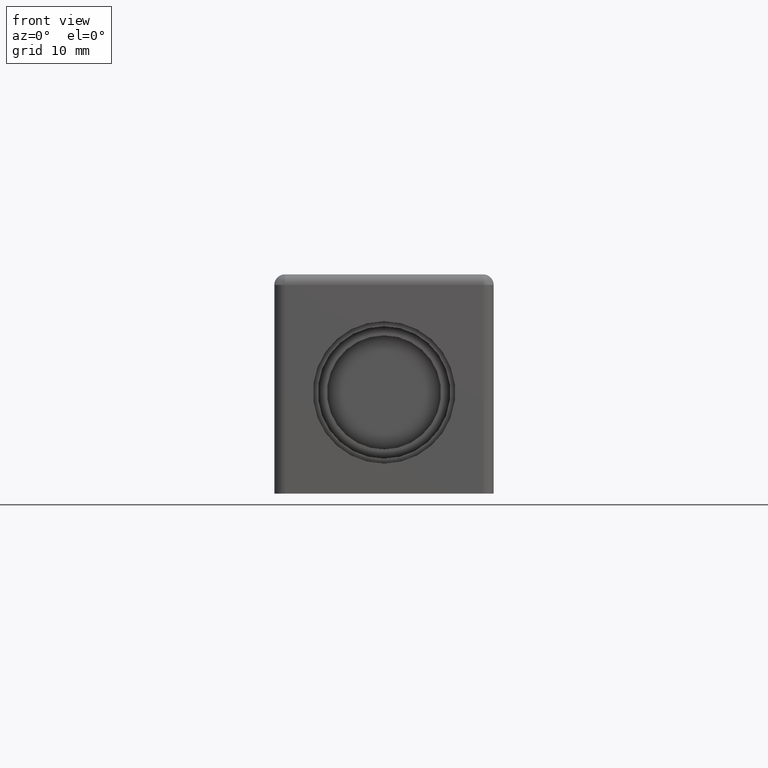
[diagram: clean part render]
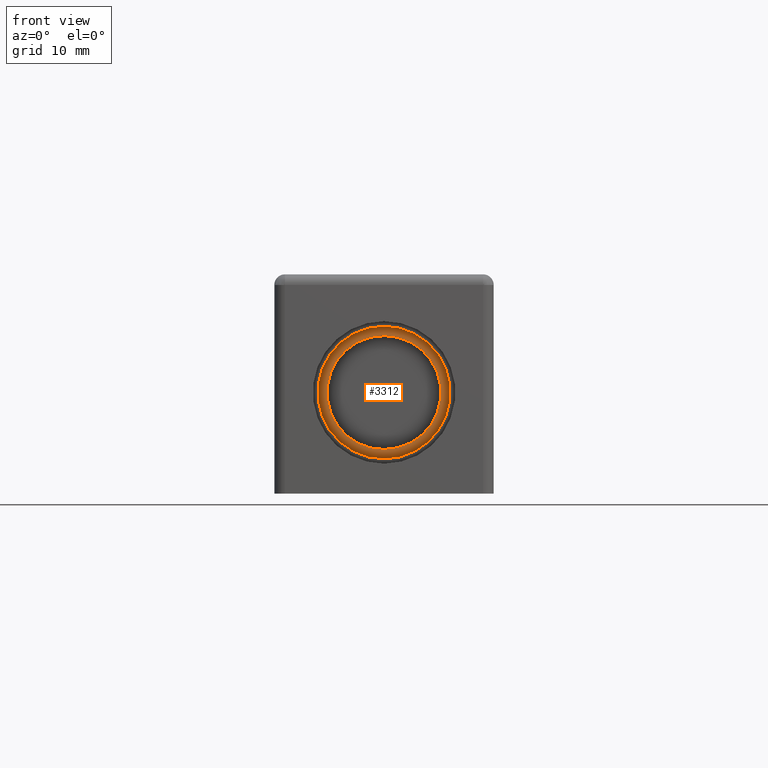
[diagram: same view with one face highlighted and labeled with its STEP entity id]
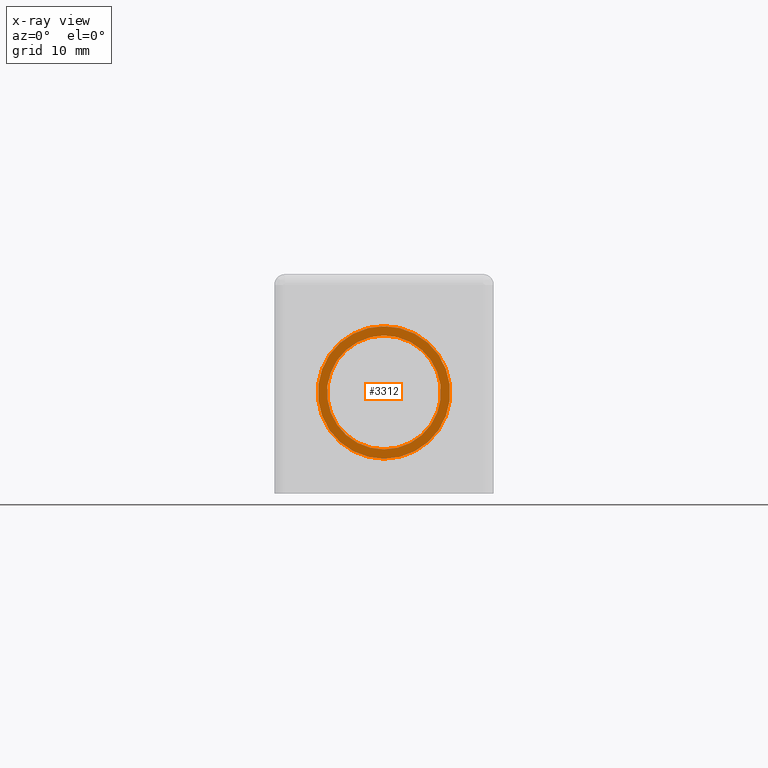
[diagram: x-ray of the same camera — body ghosted, the highlighted face saturated]
A machine part, front view. The second image highlights one B-rep face of the part: STEP entity #3312.
The next image is the same camera in x-ray: the body ghosted, the highlighted face saturated — about 0% of this face is hidden behind the body in this view.
In plain terms, the highlighted planar face has unit normal (0, 1, 0).
Its self-contained STEP definition (entity closure, byte-faithful):
#91=CARTESIAN_POINT('',(9.796851E-016,-44.750000000000014,-6.000000000000002));
#92=VERTEX_POINT('',#91);
#93=CARTESIAN_POINT('',(0.0,-44.750000000000014,10.000000000000004));
#94=VERTEX_POINT('',#93);
#95=CARTESIAN_POINT('',(0.0,-44.750000000000014,2.0));
#96=DIRECTION('',(0.0,1.0,0.0));
#97=DIRECTION('',(0.0,0.0,1.0));
#98=AXIS2_PLACEMENT_3D('',#95,#96,#97);
#99=CIRCLE('',#98,8.000000000000004);
#100=EDGE_CURVE('',#92,#94,#99,.T.);
#144=CARTESIAN_POINT('',(1.138884E-015,-44.750000000000014,-7.300000000000000));
#145=VERTEX_POINT('',#144);
#152=CARTESIAN_POINT('',(0.0,-44.750000000000014,11.300000000000001));
#153=VERTEX_POINT('',#152);
#154=CARTESIAN_POINT('',(0.0,-44.750000000000014,2.0));
#155=DIRECTION('',(0.0,1.0,0.0));
#156=DIRECTION('',(0.0,0.0,1.0));
#157=AXIS2_PLACEMENT_3D('',#154,#155,#156);
#158=CIRCLE('',#157,9.300000000000001);
#159=EDGE_CURVE('',#145,#153,#158,.T.);
#3283=CARTESIAN_POINT('',(0.0,-44.750000000000014,2.0));
#3284=DIRECTION('',(0.0,1.0,0.0));
#3285=DIRECTION('',(0.0,0.0,1.0));
#3286=AXIS2_PLACEMENT_3D('',#3283,#3284,#3285);
#3287=CIRCLE('',#3286,9.300000000000001);
#3288=EDGE_CURVE('',#153,#145,#3287,.T.);
#3293=CARTESIAN_POINT('',(-10.230000000000000,-44.750000000000014,-8.230000000000000));
#3294=DIRECTION('',(0.0,1.0,0.0));
#3295=DIRECTION('',(0.0,0.0,1.0));
#3296=AXIS2_PLACEMENT_3D('',#3293,#3294,#3295);
#3297=PLANE('',#3296);
#3298=ORIENTED_EDGE('',*,*,#3288,.F.);
#3299=ORIENTED_EDGE('',*,*,#159,.F.);
#3300=EDGE_LOOP('',(#3298,#3299));
#3301=FACE_OUTER_BOUND('',#3300,.T.);
#3302=CARTESIAN_POINT('',(0.0,-44.750000000000014,2.0));
#3303=DIRECTION('',(0.0,1.0,0.0));
#3304=DIRECTION('',(0.0,0.0,1.0));
#3305=AXIS2_PLACEMENT_3D('',#3302,#3303,#3304);
#3306=CIRCLE('',#3305,8.000000000000004);
#3307=EDGE_CURVE('',#94,#92,#3306,.T.);
#3308=ORIENTED_EDGE('',*,*,#3307,.T.);
#3309=ORIENTED_EDGE('',*,*,#100,.T.);
#3310=EDGE_LOOP('',(#3308,#3309));
#3311=FACE_BOUND('',#3310,.T.);
#3312=ADVANCED_FACE('',(#3301,#3311),#3297,.F.);